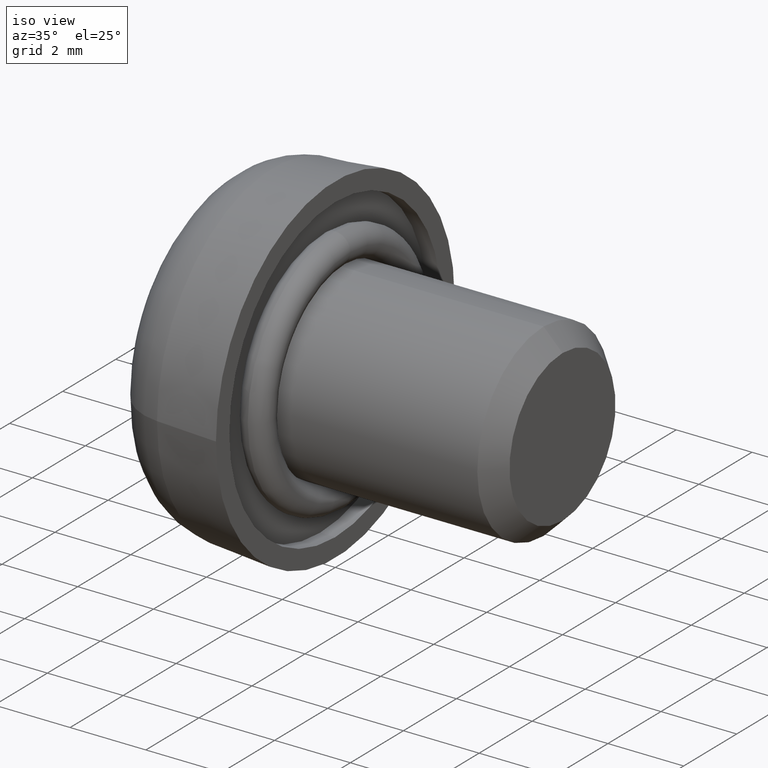
[diagram: clean part render]
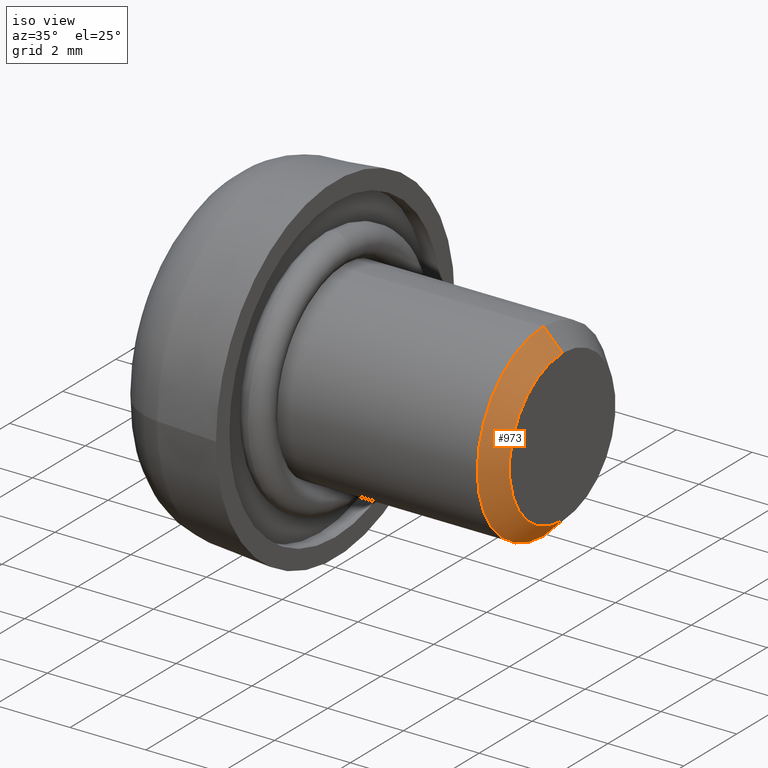
[diagram: same view with one face highlighted and labeled with its STEP entity id]
A machine part, iso view. The second image highlights one B-rep face of the part: STEP entity #973.
In plain terms, the highlighted conical surface has half-angle 45 deg.
Its self-contained STEP definition (entity closure, byte-faithful):
#5 = CARTESIAN_POINT ( 'NONE',  ( 5.500000000000000000, 0.0000000000000000000, 0.0000000000000000000 ) ) ;
#21 = VECTOR ( 'NONE', #720, 1000.000000000000100 ) ;
#55 = EDGE_CURVE ( 'NONE', #924, #628, #151, .T. ) ;
#135 = EDGE_LOOP ( 'NONE', ( #1207, #678, #876, #527 ) ) ;
#151 = LINE ( 'NONE', #787, #633 ) ;
#197 = CARTESIAN_POINT ( 'NONE',  ( 6.000000000000000000, 0.0000000000000000000, 0.0000000000000000000 ) ) ;
#201 = VERTEX_POINT ( 'NONE', #815 ) ;
#257 = EDGE_CURVE ( 'NONE', #628, #833, #1237, .T. ) ;
#263 = FACE_OUTER_BOUND ( 'NONE', #135, .T. ) ;
#330 = AXIS2_PLACEMENT_3D ( 'NONE', #629, #935, #336 ) ;
#336 = DIRECTION ( 'NONE',  ( 0.0000000000000000000, 0.0000000000000000000, 1.000000000000000000 ) ) ;
#402 = CIRCLE ( 'NONE', #1248, 2.000000000000001800 ) ;
#486 = DIRECTION ( 'NONE',  ( 1.000000000000000000, 0.0000000000000000000, 0.0000000000000000000 ) ) ;
#492 = CONICAL_SURFACE ( 'NONE', #330, 2.000000000000001800, 0.7853981633974461700 ) ;
#500 = CARTESIAN_POINT ( 'NONE',  ( 6.000000000000000000, 0.0000000000000000000, 2.000000000000001800 ) ) ;
#527 = ORIENTED_EDGE ( 'NONE', *, *, #257, .F. ) ;
#538 = AXIS2_PLACEMENT_3D ( 'NONE', #5, #921, #918 ) ;
#565 = EDGE_CURVE ( 'NONE', #201, #833, #797, .T. ) ;
#628 = VERTEX_POINT ( 'NONE', #709 ) ;
#629 = CARTESIAN_POINT ( 'NONE',  ( 6.000000000000000000, 0.0000000000000000000, 0.0000000000000000000 ) ) ;
#633 = VECTOR ( 'NONE', #779, 1000.000000000000100 ) ;
#678 = ORIENTED_EDGE ( 'NONE', *, *, #1132, .F. ) ;
#679 = DIRECTION ( 'NONE',  ( 0.0000000000000000000, 0.0000000000000000000, -1.000000000000000000 ) ) ;
#709 = CARTESIAN_POINT ( 'NONE',  ( 5.500000000000000000, 3.061616997868383100E-016, -2.500000000000000000 ) ) ;
#720 = DIRECTION ( 'NONE',  ( -0.7071067811865489100, 0.0000000000000000000, 0.7071067811865460200 ) ) ;
#767 = CARTESIAN_POINT ( 'NONE',  ( 5.500000000000000000, 0.0000000000000000000, 2.500000000000000000 ) ) ;
#779 = DIRECTION ( 'NONE',  ( -0.7071067811865489100, 8.659560562354913100E-017, -0.7071067811865460200 ) ) ;
#787 = CARTESIAN_POINT ( 'NONE',  ( 6.000000000000000000, 2.449293598294708900E-016, -2.000000000000001800 ) ) ;
#797 = LINE ( 'NONE', #500, #21 ) ;
#815 = CARTESIAN_POINT ( 'NONE',  ( 6.000000000000000000, 0.0000000000000000000, 2.000000000000001800 ) ) ;
#833 = VERTEX_POINT ( 'NONE', #767 ) ;
#876 = ORIENTED_EDGE ( 'NONE', *, *, #565, .T. ) ;
#880 = CARTESIAN_POINT ( 'NONE',  ( 6.000000000000000000, 2.755455298081545800E-016, -2.000000000000001800 ) ) ;
#918 = DIRECTION ( 'NONE',  ( 0.0000000000000000000, 0.0000000000000000000, -1.000000000000000000 ) ) ;
#921 = DIRECTION ( 'NONE',  ( -1.000000000000000000, 0.0000000000000000000, 0.0000000000000000000 ) ) ;
#924 = VERTEX_POINT ( 'NONE', #880 ) ;
#935 = DIRECTION ( 'NONE',  ( -1.000000000000000000, 0.0000000000000000000, 0.0000000000000000000 ) ) ;
#973 = ADVANCED_FACE ( 'NONE', ( #263 ), #492, .T. ) ;
#1132 = EDGE_CURVE ( 'NONE', #201, #924, #402, .T. ) ;
#1207 = ORIENTED_EDGE ( 'NONE', *, *, #55, .F. ) ;
#1237 = CIRCLE ( 'NONE', #538, 2.500000000000000000 ) ;
#1248 = AXIS2_PLACEMENT_3D ( 'NONE', #197, #486, #679 ) ;